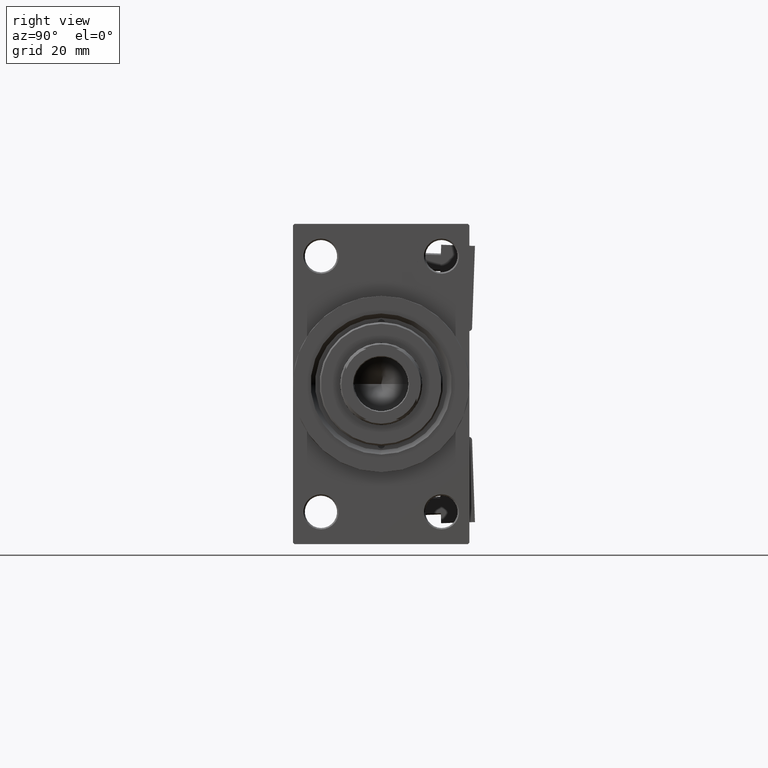
[diagram: clean part render]
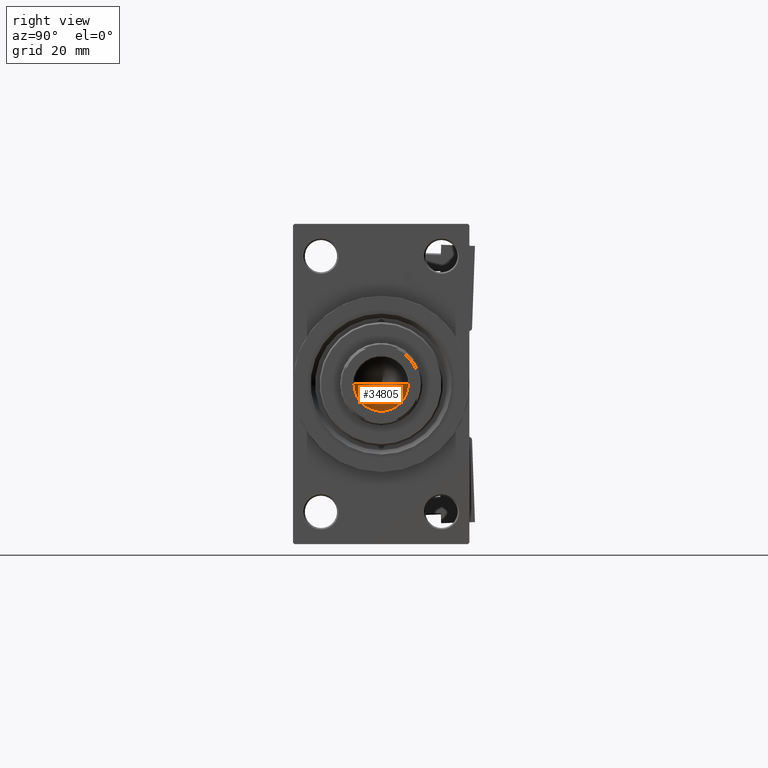
[diagram: same view with one face highlighted and labeled with its STEP entity id]
A machine part, right view. The second image highlights one B-rep face of the part: STEP entity #34805.
In plain terms, the highlighted conical surface has half-angle 59 deg.
Its self-contained STEP definition (entity closure, byte-faithful):
#1439 = LINE ( 'NONE', #44404, #36539 ) ;
#2779 = CARTESIAN_POINT ( 'NONE',  ( 9.249999999999992895, 0.000000000000000000, 131.0000000000000000 ) ) ;
#3658 = EDGE_CURVE ( 'NONE', #33109, #4577, #4762, .T. ) ;
#4577 = VERTEX_POINT ( 'NONE', #2779 ) ;
#4762 = LINE ( 'NONE', #12287, #7465 ) ;
#5921 = DIRECTION ( 'NONE',  ( 1.000000000000000000, 0.000000000000000000, 0.000000000000000000 ) ) ;
#7465 = VECTOR ( 'NONE', #16069, 1000.000000000000000 ) ;
#9689 = FACE_OUTER_BOUND ( 'NONE', #35217, .T. ) ;
#9985 = VERTEX_POINT ( 'NONE', #40472 ) ;
#12287 = CARTESIAN_POINT ( 'NONE',  ( 9.249999999999992895, 0.000000000000000000, 131.0000000000000000 ) ) ;
#14930 = EDGE_CURVE ( 'NONE', #33109, #9985, #1439, .T. ) ;
#15360 = CARTESIAN_POINT ( 'NONE',  ( -9.769621978240258809E-15, 0.000000000000000000, 125.4420392739950501 ) ) ;
#16069 = DIRECTION ( 'NONE',  ( 0.8571673007021112234, 0.000000000000000000, 0.5150380749100560429 ) ) ;
#17901 = CONICAL_SURFACE ( 'NONE', #45157, 9.249999999999992895, 1.029744258676652313 ) ;
#21008 = CARTESIAN_POINT ( 'NONE',  ( 0.000000000000000000, 0.000000000000000000, 131.0000000000000000 ) ) ;
#21288 = DIRECTION ( 'NONE',  ( -0.8571673007021112234, 1.049727191138617340E-16, 0.5150380749100560429 ) ) ;
#22986 = AXIS2_PLACEMENT_3D ( 'NONE', #37887, #44687, #25341 ) ;
#25341 = DIRECTION ( 'NONE',  ( 1.000000000000000000, 0.000000000000000000, 0.000000000000000000 ) ) ;
#27948 = ORIENTED_EDGE ( 'NONE', *, *, #14930, .F. ) ;
#30196 = ORIENTED_EDGE ( 'NONE', *, *, #45719, .T. ) ;
#33109 = VERTEX_POINT ( 'NONE', #15360 ) ;
#34805 = ADVANCED_FACE ( 'NONE', ( #9689 ), #17901, .F. ) ;
#35217 = EDGE_LOOP ( 'NONE', ( #27948, #42294, #30196 ) ) ;
#35847 = DIRECTION ( 'NONE',  ( -0.000000000000000000, -0.000000000000000000, 1.000000000000000000 ) ) ;
#36539 = VECTOR ( 'NONE', #21288, 1000.000000000000000 ) ;
#37887 = CARTESIAN_POINT ( 'NONE',  ( 0.000000000000000000, 0.000000000000000000, 131.0000000000000000 ) ) ;
#40472 = CARTESIAN_POINT ( 'NONE',  ( -9.249999999999992895, 1.132798289211300712E-15, 131.0000000000000000 ) ) ;
#42294 = ORIENTED_EDGE ( 'NONE', *, *, #3658, .T. ) ;
#43859 = CIRCLE ( 'NONE', #22986, 9.249999999999992895 ) ;
#44404 = CARTESIAN_POINT ( 'NONE',  ( -9.249999999999992895, 1.132798289211300712E-15, 131.0000000000000000 ) ) ;
#44687 = DIRECTION ( 'NONE',  ( -0.000000000000000000, -0.000000000000000000, 1.000000000000000000 ) ) ;
#45157 = AXIS2_PLACEMENT_3D ( 'NONE', #21008, #35847, #5921 ) ;
#45719 = EDGE_CURVE ( 'NONE', #4577, #9985, #43859, .T. ) ;